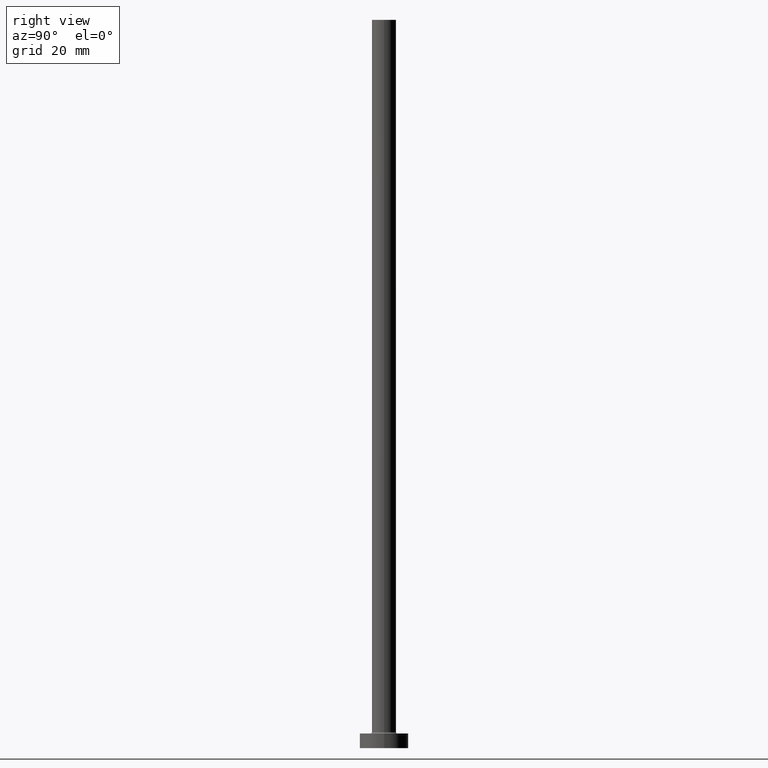
[diagram: clean part render]
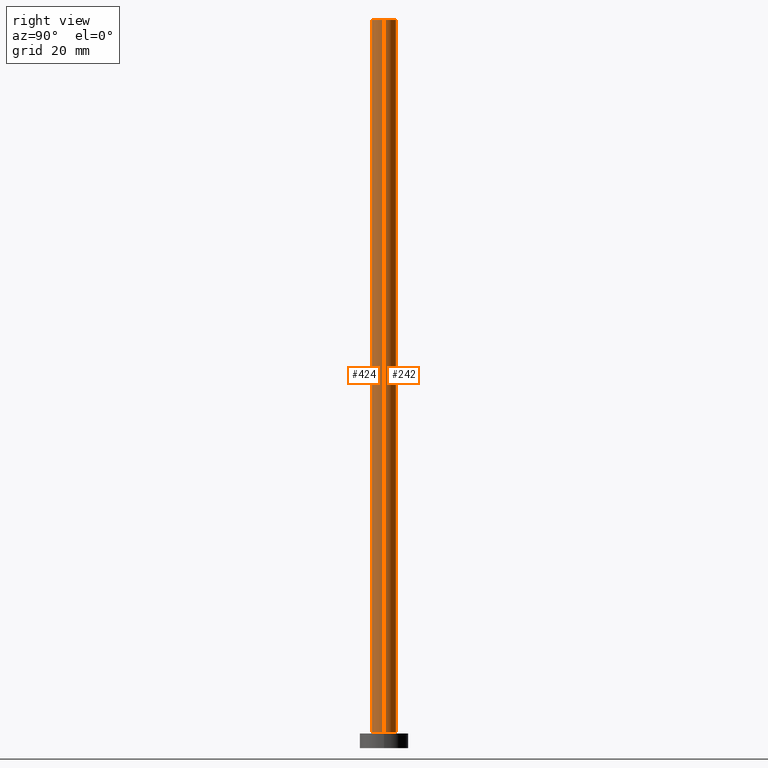
[diagram: same view with one multi-face feature highlighted, each face labeled with its STEP entity id]
A machine part, right view. The highlighted faces form ONE feature: a constant-radius fillet chain: 2 tangent blend faces with common blend radius 2.5 mm. The faces share edges in the B-rep.
Their STEP definitions:
[1] entity #424 (Cylinder):
#6 = CARTESIAN_POINT ( 'NONE',  ( 0.000000000000000000, 0.000000000000000000, 150.0000000000000000 ) ) ;
#27 = VECTOR ( 'NONE', #186, 1000.000000000000000 ) ;
#32 = EDGE_LOOP ( 'NONE', ( #57, #349, #333, #35 ) ) ;
#35 = ORIENTED_EDGE ( 'NONE', *, *, #100, .T. ) ;
#44 = DIRECTION ( 'NONE',  ( 1.000000000000000000, 0.000000000000000000, 0.000000000000000000 ) ) ;
#54 = CARTESIAN_POINT ( 'NONE',  ( -2.500000000000000000, 0.000000000000000000, 3.299999999999997158 ) ) ;
#56 = CARTESIAN_POINT ( 'NONE',  ( 0.000000000000000000, 0.000000000000000000, 3.299999999999997158 ) ) ;
#57 = ORIENTED_EDGE ( 'NONE', *, *, #383, .F. ) ;
#64 = EDGE_CURVE ( 'NONE', #125, #198, #260, .T. ) ;
#72 = DIRECTION ( 'NONE',  ( 0.000000000000000000, 0.000000000000000000, 1.000000000000000000 ) ) ;
#92 = DIRECTION ( 'NONE',  ( 1.000000000000000000, 0.000000000000000000, 0.000000000000000000 ) ) ;
#100 = EDGE_CURVE ( 'NONE', #198, #303, #113, .T. ) ;
#113 = CIRCLE ( 'NONE', #177, 2.500000000000000000 ) ;
#118 = CARTESIAN_POINT ( 'NONE',  ( 2.500000000000000000, 3.061616997868383141E-16, 3.299999999999997158 ) ) ;
#125 = VERTEX_POINT ( 'NONE', #280 ) ;
#167 = DIRECTION ( 'NONE',  ( 0.000000000000000000, 0.000000000000000000, 1.000000000000000000 ) ) ;
#176 = FACE_OUTER_BOUND ( 'NONE', #32, .T. ) ;
#177 = AXIS2_PLACEMENT_3D ( 'NONE', #56, #167, #92 ) ;
#181 = DIRECTION ( 'NONE',  ( -1.000000000000000000, 0.000000000000000000, 0.000000000000000000 ) ) ;
#186 = DIRECTION ( 'NONE',  ( -0.000000000000000000, -0.000000000000000000, -1.000000000000000000 ) ) ;
#197 = AXIS2_PLACEMENT_3D ( 'NONE', #256, #420, #181 ) ;
#198 = VERTEX_POINT ( 'NONE', #54 ) ;
#235 = LINE ( 'NONE', #369, #378 ) ;
#256 = CARTESIAN_POINT ( 'NONE',  ( 0.000000000000000000, 0.000000000000000000, 150.0000000000000000 ) ) ;
#260 = LINE ( 'NONE', #385, #27 ) ;
#274 = EDGE_CURVE ( 'NONE', #125, #308, #393, .T. ) ;
#280 = CARTESIAN_POINT ( 'NONE',  ( -2.500000000000000000, 0.000000000000000000, 150.0000000000000000 ) ) ;
#303 = VERTEX_POINT ( 'NONE', #118 ) ;
#308 = VERTEX_POINT ( 'NONE', #323 ) ;
#323 = CARTESIAN_POINT ( 'NONE',  ( 2.500000000000000000, 3.061616997868383141E-16, 150.0000000000000000 ) ) ;
#333 = ORIENTED_EDGE ( 'NONE', *, *, #64, .T. ) ;
#346 = CYLINDRICAL_SURFACE ( 'NONE', #197, 2.500000000000000000 ) ;
#349 = ORIENTED_EDGE ( 'NONE', *, *, #274, .F. ) ;
#369 = CARTESIAN_POINT ( 'NONE',  ( 2.500000000000000000, 3.061616997868383141E-16, 150.0000000000000000 ) ) ;
#378 = VECTOR ( 'NONE', #458, 1000.000000000000000 ) ;
#383 = EDGE_CURVE ( 'NONE', #308, #303, #235, .T. ) ;
#385 = CARTESIAN_POINT ( 'NONE',  ( -2.500000000000000000, 0.000000000000000000, 150.0000000000000000 ) ) ;
#393 = CIRCLE ( 'NONE', #404, 2.500000000000000000 ) ;
#404 = AXIS2_PLACEMENT_3D ( 'NONE', #6, #72, #44 ) ;
#420 = DIRECTION ( 'NONE',  ( -0.000000000000000000, -0.000000000000000000, -1.000000000000000000 ) ) ;
#424 = ADVANCED_FACE ( 'NONE', ( #176 ), #346, .T. ) ;
#458 = DIRECTION ( 'NONE',  ( -0.000000000000000000, -0.000000000000000000, -1.000000000000000000 ) ) ;
[2] entity #242 (Cylinder):
#1 = EDGE_LOOP ( 'NONE', ( #49, #422, #199, #314 ) ) ;
#11 = DIRECTION ( 'NONE',  ( -1.000000000000000000, 0.000000000000000000, 0.000000000000000000 ) ) ;
#12 = EDGE_CURVE ( 'NONE', #303, #198, #58, .T. ) ;
#27 = VECTOR ( 'NONE', #186, 1000.000000000000000 ) ;
#49 = ORIENTED_EDGE ( 'NONE', *, *, #213, .F. ) ;
#54 = CARTESIAN_POINT ( 'NONE',  ( -2.500000000000000000, 0.000000000000000000, 3.299999999999997158 ) ) ;
#58 = CIRCLE ( 'NONE', #102, 2.500000000000000000 ) ;
#64 = EDGE_CURVE ( 'NONE', #125, #198, #260, .T. ) ;
#77 = DIRECTION ( 'NONE',  ( -0.000000000000000000, -0.000000000000000000, -1.000000000000000000 ) ) ;
#80 = FACE_OUTER_BOUND ( 'NONE', #1, .T. ) ;
#102 = AXIS2_PLACEMENT_3D ( 'NONE', #246, #289, #255 ) ;
#108 = DIRECTION ( 'NONE',  ( 1.000000000000000000, 0.000000000000000000, 0.000000000000000000 ) ) ;
#118 = CARTESIAN_POINT ( 'NONE',  ( 2.500000000000000000, 3.061616997868383141E-16, 3.299999999999997158 ) ) ;
#125 = VERTEX_POINT ( 'NONE', #280 ) ;
#186 = DIRECTION ( 'NONE',  ( -0.000000000000000000, -0.000000000000000000, -1.000000000000000000 ) ) ;
#196 = CARTESIAN_POINT ( 'NONE',  ( 0.000000000000000000, 0.000000000000000000, 150.0000000000000000 ) ) ;
#198 = VERTEX_POINT ( 'NONE', #54 ) ;
#199 = ORIENTED_EDGE ( 'NONE', *, *, #12, .T. ) ;
#213 = EDGE_CURVE ( 'NONE', #308, #125, #409, .T. ) ;
#230 = CYLINDRICAL_SURFACE ( 'NONE', #367, 2.500000000000000000 ) ;
#235 = LINE ( 'NONE', #369, #378 ) ;
#242 = ADVANCED_FACE ( 'NONE', ( #80 ), #230, .T. ) ;
#246 = CARTESIAN_POINT ( 'NONE',  ( 0.000000000000000000, 0.000000000000000000, 3.299999999999997158 ) ) ;
#255 = DIRECTION ( 'NONE',  ( 1.000000000000000000, 0.000000000000000000, 0.000000000000000000 ) ) ;
#260 = LINE ( 'NONE', #385, #27 ) ;
#280 = CARTESIAN_POINT ( 'NONE',  ( -2.500000000000000000, 0.000000000000000000, 150.0000000000000000 ) ) ;
#289 = DIRECTION ( 'NONE',  ( 0.000000000000000000, 0.000000000000000000, 1.000000000000000000 ) ) ;
#303 = VERTEX_POINT ( 'NONE', #118 ) ;
#308 = VERTEX_POINT ( 'NONE', #323 ) ;
#314 = ORIENTED_EDGE ( 'NONE', *, *, #64, .F. ) ;
#323 = CARTESIAN_POINT ( 'NONE',  ( 2.500000000000000000, 3.061616997868383141E-16, 150.0000000000000000 ) ) ;
#336 = AXIS2_PLACEMENT_3D ( 'NONE', #358, #439, #108 ) ;
#358 = CARTESIAN_POINT ( 'NONE',  ( 0.000000000000000000, 0.000000000000000000, 150.0000000000000000 ) ) ;
#367 = AXIS2_PLACEMENT_3D ( 'NONE', #196, #77, #11 ) ;
#369 = CARTESIAN_POINT ( 'NONE',  ( 2.500000000000000000, 3.061616997868383141E-16, 150.0000000000000000 ) ) ;
#378 = VECTOR ( 'NONE', #458, 1000.000000000000000 ) ;
#383 = EDGE_CURVE ( 'NONE', #308, #303, #235, .T. ) ;
#385 = CARTESIAN_POINT ( 'NONE',  ( -2.500000000000000000, 0.000000000000000000, 150.0000000000000000 ) ) ;
#409 = CIRCLE ( 'NONE', #336, 2.500000000000000000 ) ;
#422 = ORIENTED_EDGE ( 'NONE', *, *, #383, .T. ) ;
#439 = DIRECTION ( 'NONE',  ( 0.000000000000000000, 0.000000000000000000, 1.000000000000000000 ) ) ;
#458 = DIRECTION ( 'NONE',  ( -0.000000000000000000, -0.000000000000000000, -1.000000000000000000 ) ) ;